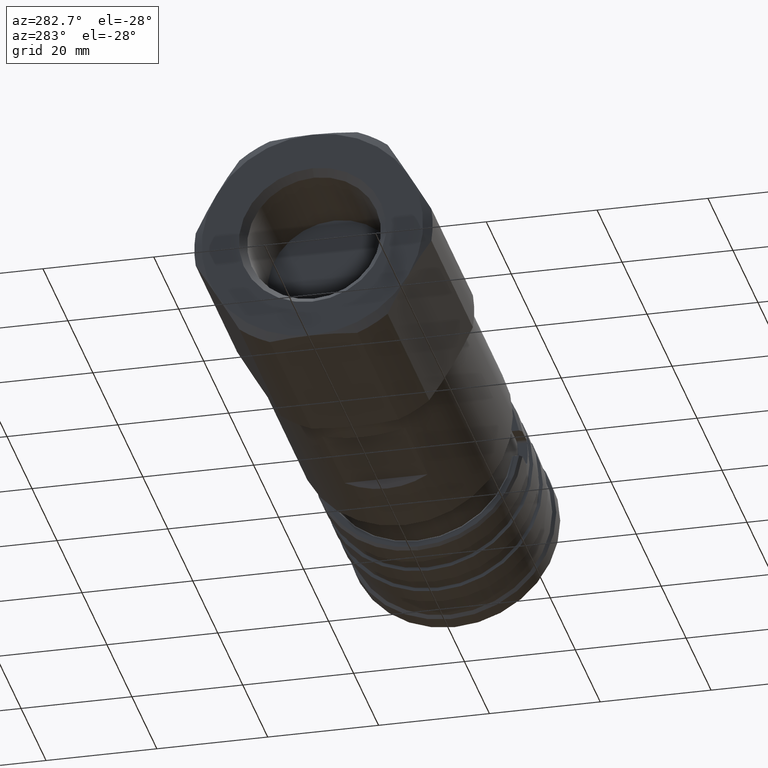
[diagram: clean part render]
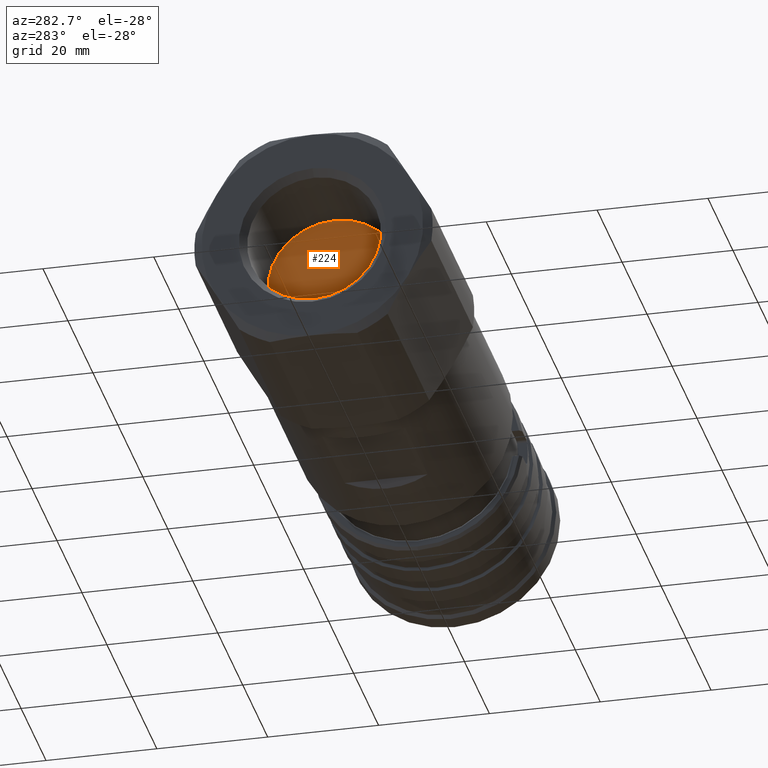
[diagram: same view with one face highlighted and labeled with its STEP entity id]
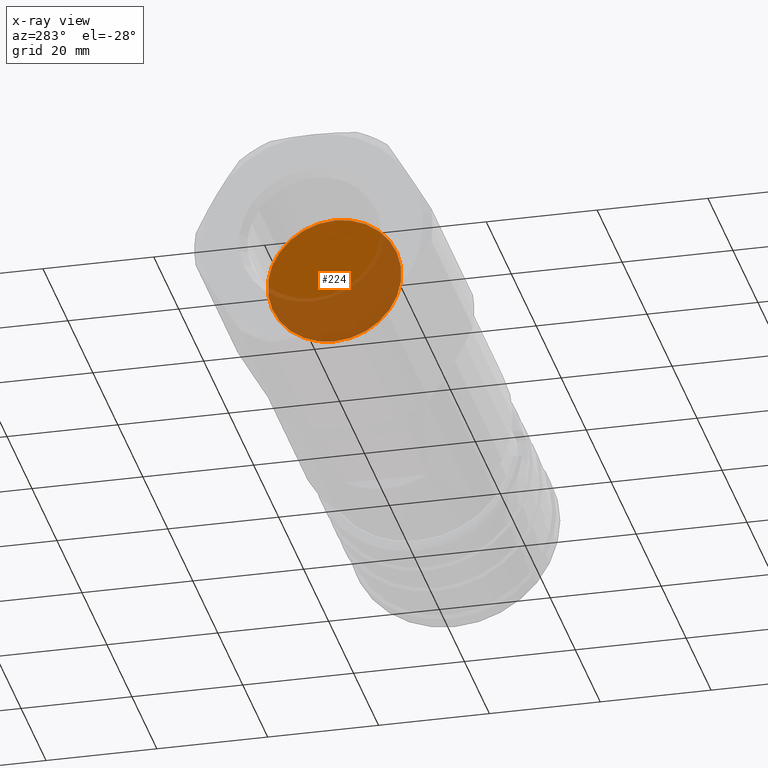
[diagram: x-ray of the same camera — body ghosted, the highlighted face saturated]
A machine part, auxiliary view. The second image highlights one B-rep face of the part: STEP entity #224.
The next image is the same camera in x-ray: the body ghosted, the highlighted face saturated — about 50% of this face is hidden behind the body in this view.
In plain terms, the highlighted planar face has unit normal (1, 0, 0).
Its self-contained STEP definition (entity closure, byte-faithful):
#224 = ADVANCED_FACE ( 'NONE', ( #2268 ), #3226, .F. ) ;
#482 = CARTESIAN_POINT ( 'NONE',  ( -43.98495200951230500, 8.317563489154058600E-017, 8.698401715295804100E-016 ) ) ;
#483 = DIRECTION ( 'NONE',  ( -1.000000000000000000, -0.0000000000000000000, -0.0000000000000000000 ) ) ;
#484 = DIRECTION ( 'NONE',  ( 0.0000000000000000000, 0.0000000000000000000, -1.000000000000000000 ) ) ;
#514 = CARTESIAN_POINT ( 'NONE',  ( -43.98495200951230500, 1.559915977643376500E-015, -12.05849999999999900 ) ) ;
#955 = CARTESIAN_POINT ( 'NONE',  ( -43.98495200951230500, 8.317563489154058600E-017, 8.698401715295804100E-016 ) ) ;
#956 = DIRECTION ( 'NONE',  ( -1.000000000000000000, -0.0000000000000000000, -0.0000000000000000000 ) ) ;
#957 = DIRECTION ( 'NONE',  ( 0.0000000000000000000, 0.0000000000000000000, -1.000000000000000000 ) ) ;
#1062 = CARTESIAN_POINT ( 'NONE',  ( -43.98495200951230500, 8.317563489154058600E-017, 12.05850000000000200 ) ) ;
#1297 = EDGE_LOOP ( 'NONE', ( #3779, #3780 ) ) ;
#1540 = CIRCLE ( 'NONE', #2607, 12.05850000000000000 ) ;
#1773 = EDGE_CURVE ( 'NONE', #1788, #3608, #2811, .T. ) ;
#1788 = VERTEX_POINT ( 'NONE', #514 ) ;
#2268 = FACE_OUTER_BOUND ( 'NONE', #1297, .T. ) ;
#2440 = AXIS2_PLACEMENT_3D ( 'NONE', #3227, #3228, #3229 ) ;
#2541 = AXIS2_PLACEMENT_3D ( 'NONE', #482, #483, #484 ) ;
#2607 = AXIS2_PLACEMENT_3D ( 'NONE', #955, #956, #957 ) ;
#2622 = EDGE_CURVE ( 'NONE', #3608, #1788, #1540, .T. ) ;
#2811 = CIRCLE ( 'NONE', #2541, 12.05850000000000000 ) ;
#3226 = PLANE ( 'NONE',  #2440 ) ;
#3227 = CARTESIAN_POINT ( 'NONE',  ( -43.98495200951230500, 0.0000000000000000000, 0.0000000000000000000 ) ) ;
#3228 = DIRECTION ( 'NONE',  ( 1.000000000000000000, 0.0000000000000000000, 0.0000000000000000000 ) ) ;
#3229 = DIRECTION ( 'NONE',  ( 0.0000000000000000000, 0.0000000000000000000, -1.000000000000000000 ) ) ;
#3608 = VERTEX_POINT ( 'NONE', #1062 ) ;
#3779 = ORIENTED_EDGE ( 'NONE', *, *, #2622, .T. ) ;
#3780 = ORIENTED_EDGE ( 'NONE', *, *, #1773, .T. ) ;